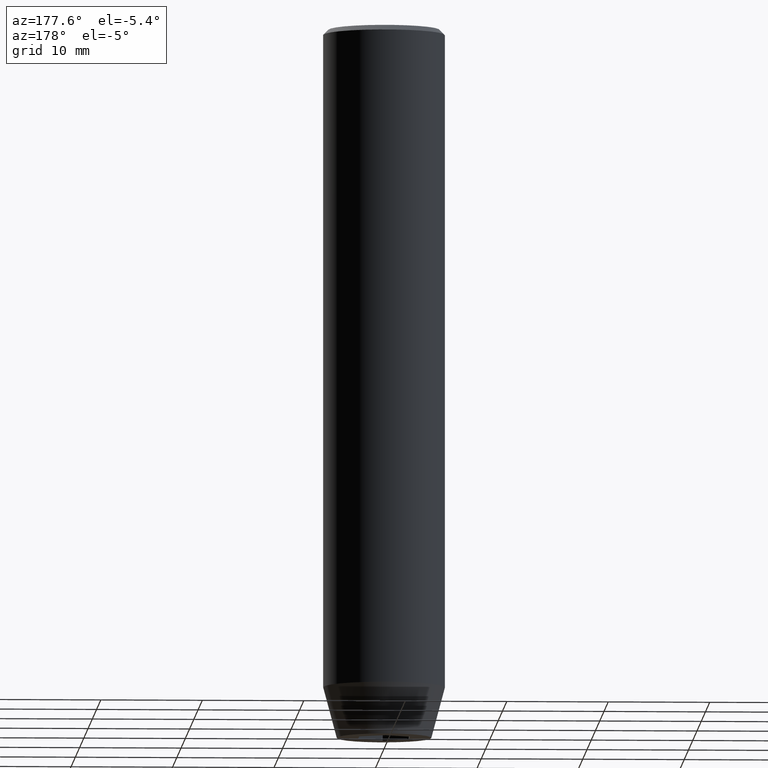
[diagram: clean part render]
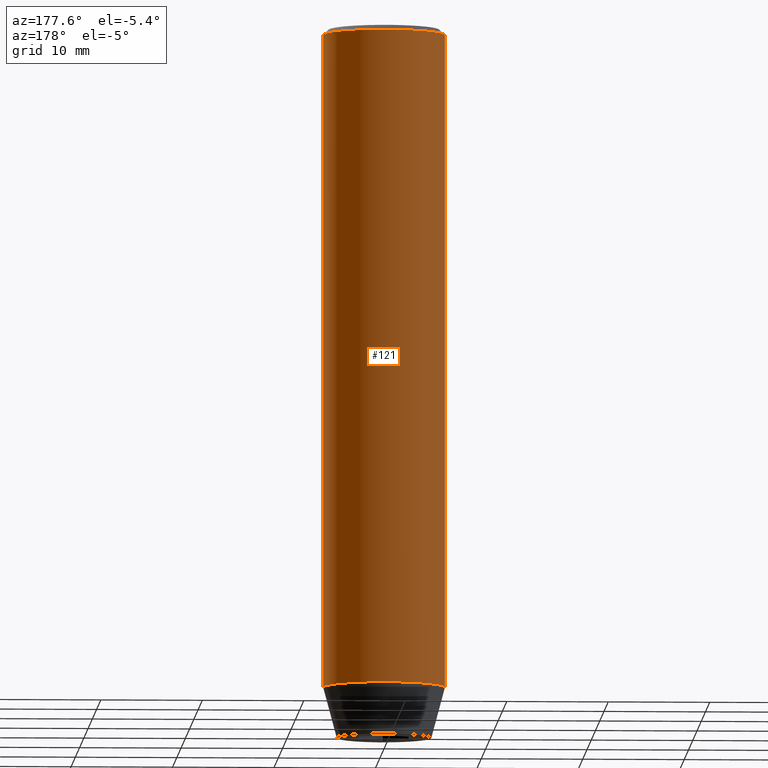
[diagram: same view with one face highlighted and labeled with its STEP entity id]
A machine part, auxiliary view. The second image highlights one B-rep face of the part: STEP entity #121.
In plain terms, the highlighted cylindrical surface (partial cylindrical patch) has radius 6 mm, axis along (-0, -0, 1).
Its self-contained STEP definition (entity closure, byte-faithful):
#21 = DIRECTION ( 'NONE',  ( 1.000000000000000000, 0.000000000000000000, 0.000000000000000000 ) ) ;
#28 = VERTEX_POINT ( 'NONE', #214 ) ;
#49 = LINE ( 'NONE', #234, #217 ) ;
#61 = VERTEX_POINT ( 'NONE', #481 ) ;
#66 = DIRECTION ( 'NONE',  ( 0.000000000000000000, 0.000000000000000000, -1.000000000000000000 ) ) ;
#70 = EDGE_CURVE ( 'NONE', #28, #340, #118, .T. ) ;
#76 = DIRECTION ( 'NONE',  ( 1.000000000000000000, 0.000000000000000000, 0.000000000000000000 ) ) ;
#118 = CIRCLE ( 'NONE', #330, 6.000000000000000000 ) ;
#121 = ADVANCED_FACE ( 'NONE', ( #312 ), #363, .T. ) ;
#123 = ORIENTED_EDGE ( 'NONE', *, *, #70, .T. ) ;
#152 = VERTEX_POINT ( 'NONE', #170 ) ;
#169 = CIRCLE ( 'NONE', #529, 6.000000000000000000 ) ;
#170 = CARTESIAN_POINT ( 'NONE',  ( 6.000000000000000000, 0.000000000000000000, -0.5000000000000099920 ) ) ;
#183 = CARTESIAN_POINT ( 'NONE',  ( -6.000000000000000000, 7.347880794884119736E-16, 0.000000000000000000 ) ) ;
#197 = AXIS2_PLACEMENT_3D ( 'NONE', #573, #218, #305 ) ;
#202 = DIRECTION ( 'NONE',  ( -0.000000000000000000, -0.000000000000000000, 1.000000000000000000 ) ) ;
#214 = CARTESIAN_POINT ( 'NONE',  ( 6.000000000000000000, 0.000000000000000000, -65.00000000000000000 ) ) ;
#217 = VECTOR ( 'NONE', #500, 1000.000000000000000 ) ;
#218 = DIRECTION ( 'NONE',  ( -0.000000000000000000, -0.000000000000000000, 1.000000000000000000 ) ) ;
#229 = DIRECTION ( 'NONE',  ( -0.000000000000000000, -0.000000000000000000, 1.000000000000000000 ) ) ;
#232 = LINE ( 'NONE', #183, #539 ) ;
#234 = CARTESIAN_POINT ( 'NONE',  ( 6.000000000000000000, 0.000000000000000000, 0.000000000000000000 ) ) ;
#235 = ORIENTED_EDGE ( 'NONE', *, *, #301, .T. ) ;
#250 = CARTESIAN_POINT ( 'NONE',  ( 0.000000000000000000, 0.000000000000000000, -0.5000000000000099920 ) ) ;
#301 = EDGE_CURVE ( 'NONE', #340, #61, #232, .T. ) ;
#305 = DIRECTION ( 'NONE',  ( 1.000000000000000000, 0.000000000000000000, 0.000000000000000000 ) ) ;
#312 = FACE_OUTER_BOUND ( 'NONE', #509, .T. ) ;
#330 = AXIS2_PLACEMENT_3D ( 'NONE', #485, #202, #76 ) ;
#332 = CARTESIAN_POINT ( 'NONE',  ( -6.000000000000000000, 7.347880794884119736E-16, -65.00000000000000000 ) ) ;
#340 = VERTEX_POINT ( 'NONE', #332 ) ;
#363 = CYLINDRICAL_SURFACE ( 'NONE', #197, 6.000000000000000000 ) ;
#409 = EDGE_CURVE ( 'NONE', #28, #152, #49, .T. ) ;
#481 = CARTESIAN_POINT ( 'NONE',  ( -6.000000000000000000, 7.347880794884119736E-16, -0.5000000000000099920 ) ) ;
#485 = CARTESIAN_POINT ( 'NONE',  ( 0.000000000000000000, 0.000000000000000000, -65.00000000000000000 ) ) ;
#498 = ORIENTED_EDGE ( 'NONE', *, *, #552, .T. ) ;
#500 = DIRECTION ( 'NONE',  ( -0.000000000000000000, -0.000000000000000000, 1.000000000000000000 ) ) ;
#509 = EDGE_LOOP ( 'NONE', ( #123, #235, #498, #550 ) ) ;
#529 = AXIS2_PLACEMENT_3D ( 'NONE', #250, #66, #21 ) ;
#539 = VECTOR ( 'NONE', #229, 1000.000000000000000 ) ;
#550 = ORIENTED_EDGE ( 'NONE', *, *, #409, .F. ) ;
#552 = EDGE_CURVE ( 'NONE', #61, #152, #169, .T. ) ;
#573 = CARTESIAN_POINT ( 'NONE',  ( 0.000000000000000000, 0.000000000000000000, 0.000000000000000000 ) ) ;